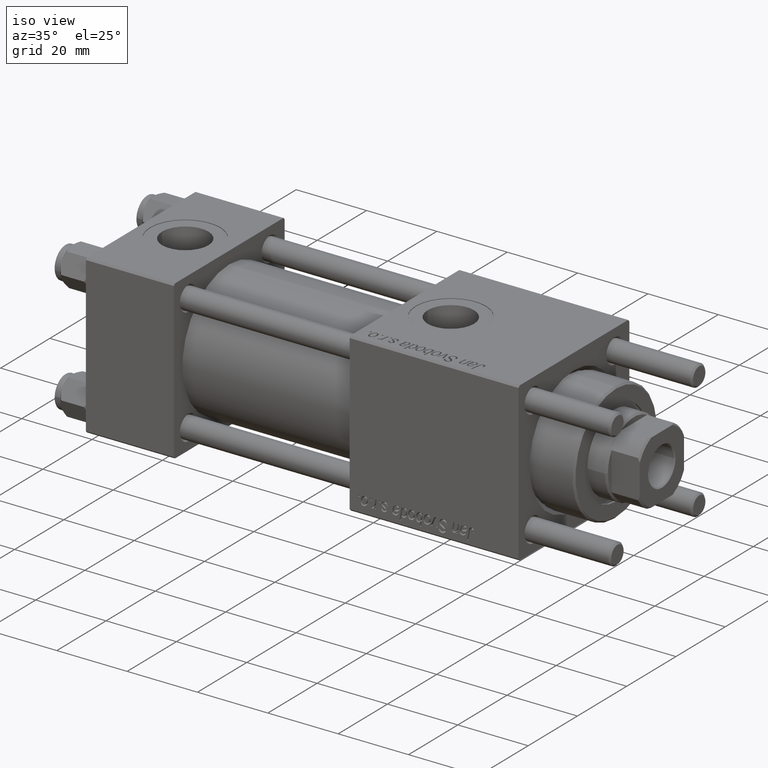
[diagram: clean part render]
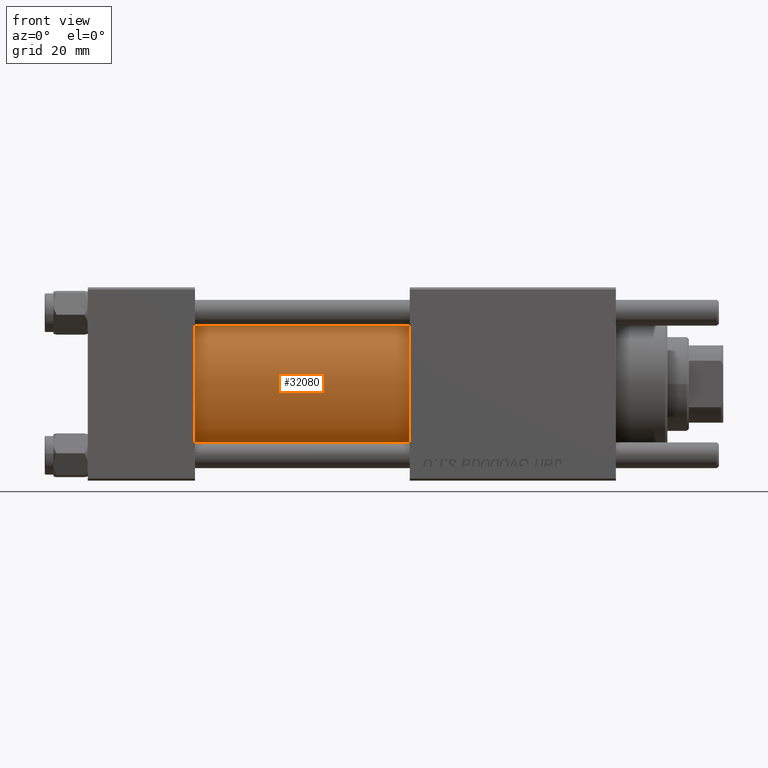
[diagram: tour spotlight — one face highlighted and labeled with its STEP entity id]
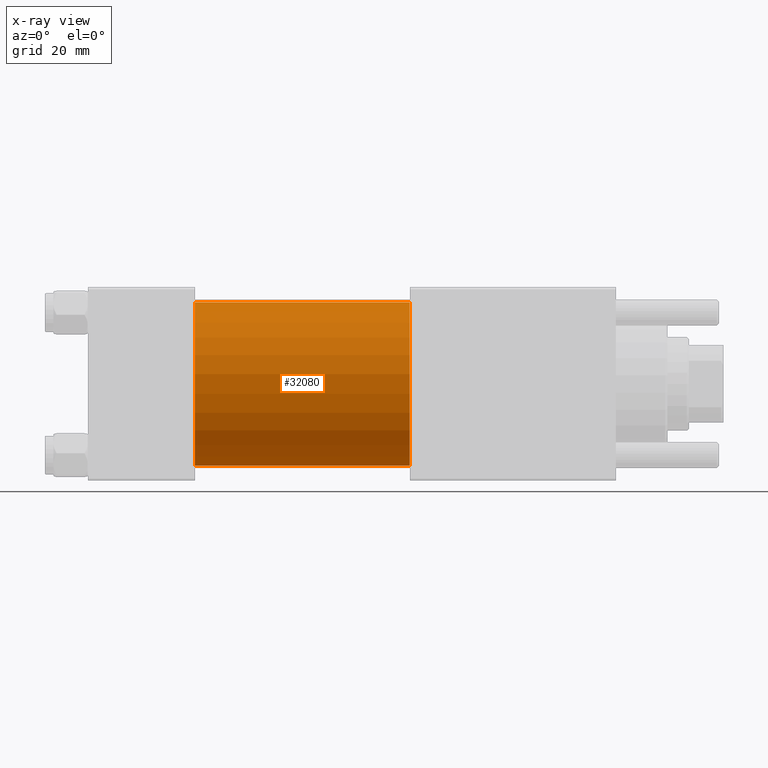
[diagram: x-ray of the same camera — body ghosted, this tour face saturated]
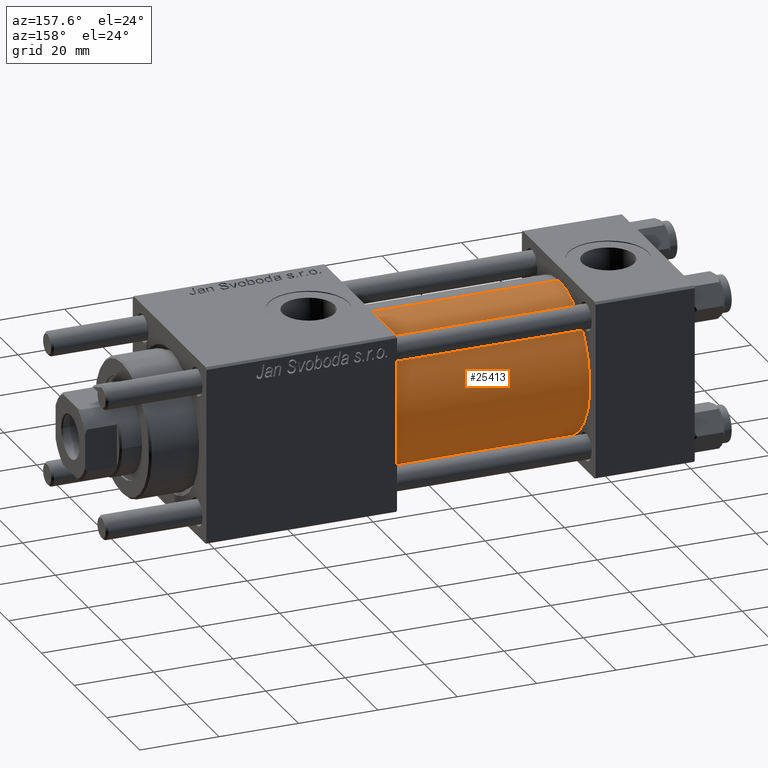
[diagram: tour spotlight — one face highlighted and labeled with its STEP entity id]
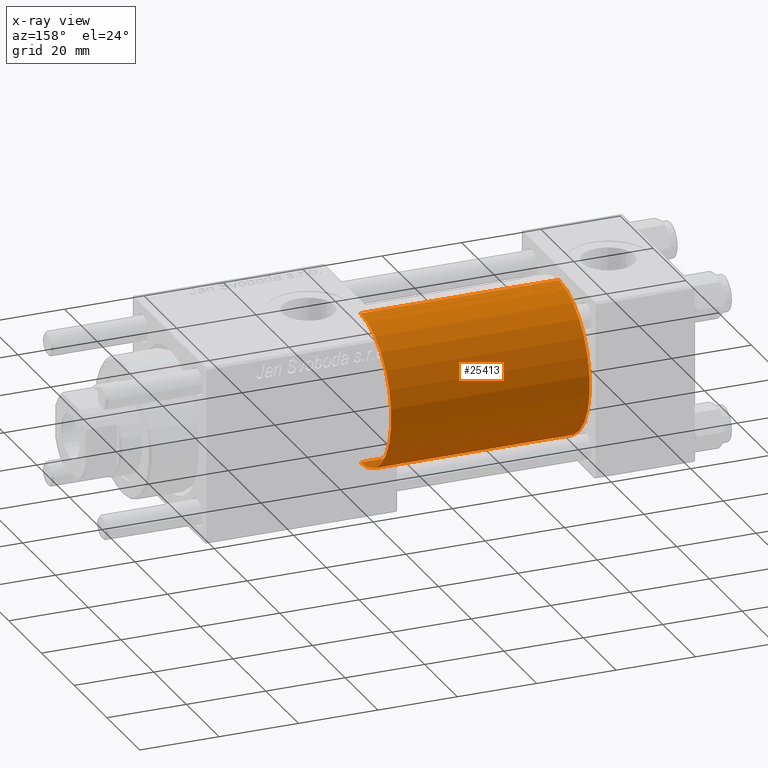
[diagram: x-ray of the same camera — body ghosted, this tour face saturated]
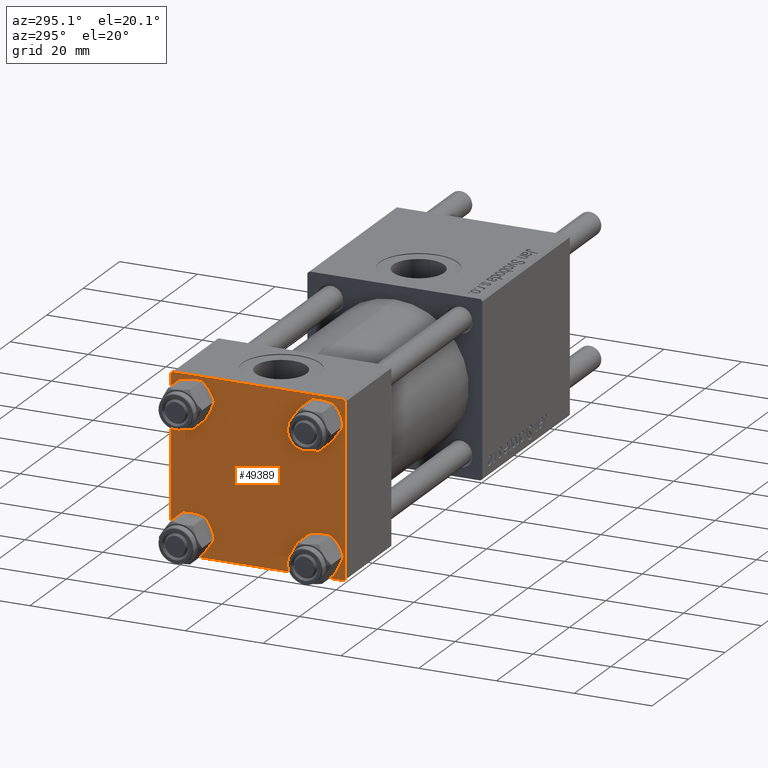
[diagram: tour spotlight — one face highlighted and labeled with its STEP entity id]
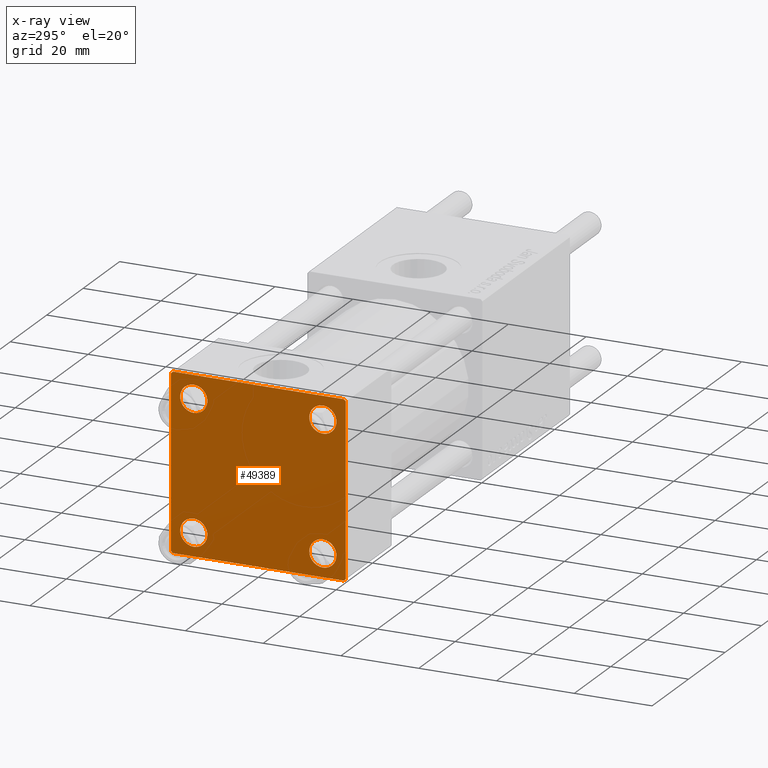
[diagram: x-ray of the same camera — body ghosted, this tour face saturated]
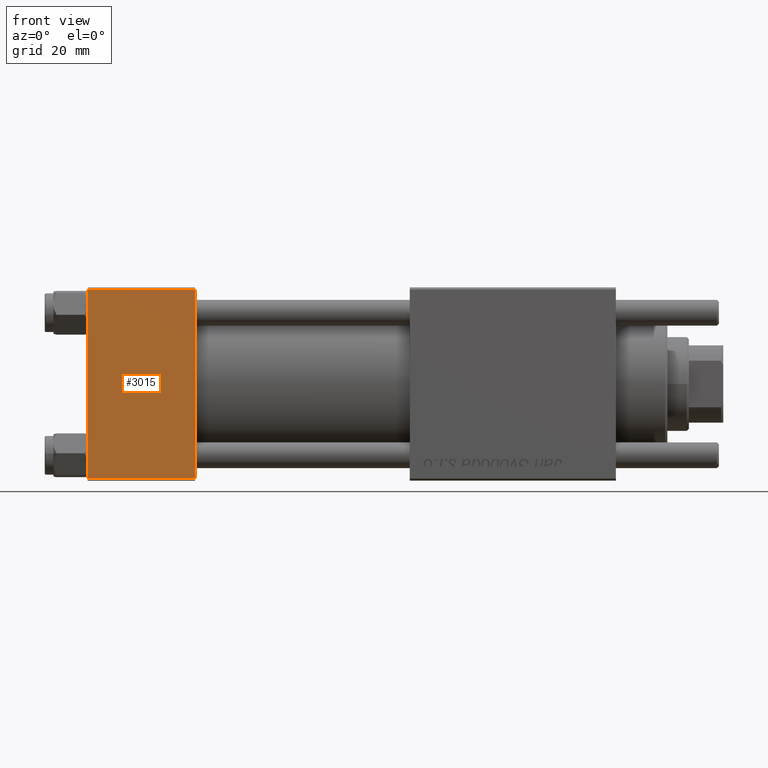
[diagram: tour spotlight — one face highlighted and labeled with its STEP entity id]
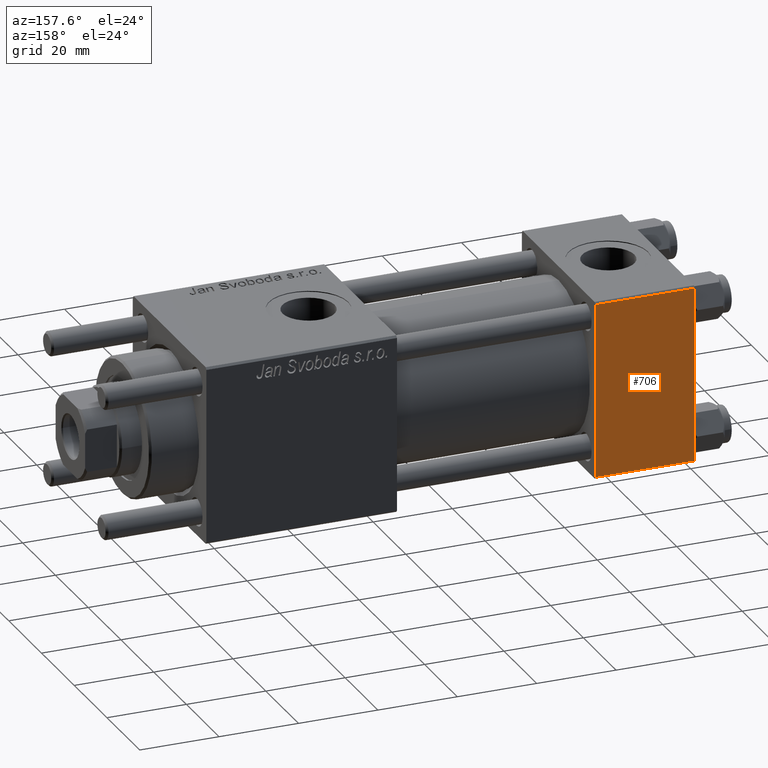
[diagram: tour spotlight — one face highlighted and labeled with its STEP entity id]
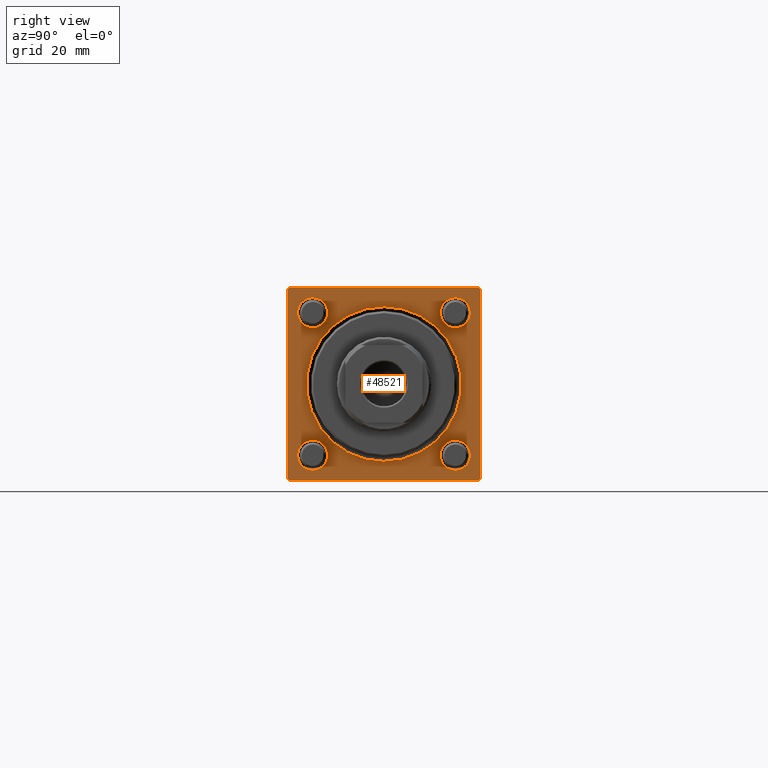
[diagram: tour spotlight — one face highlighted and labeled with its STEP entity id]
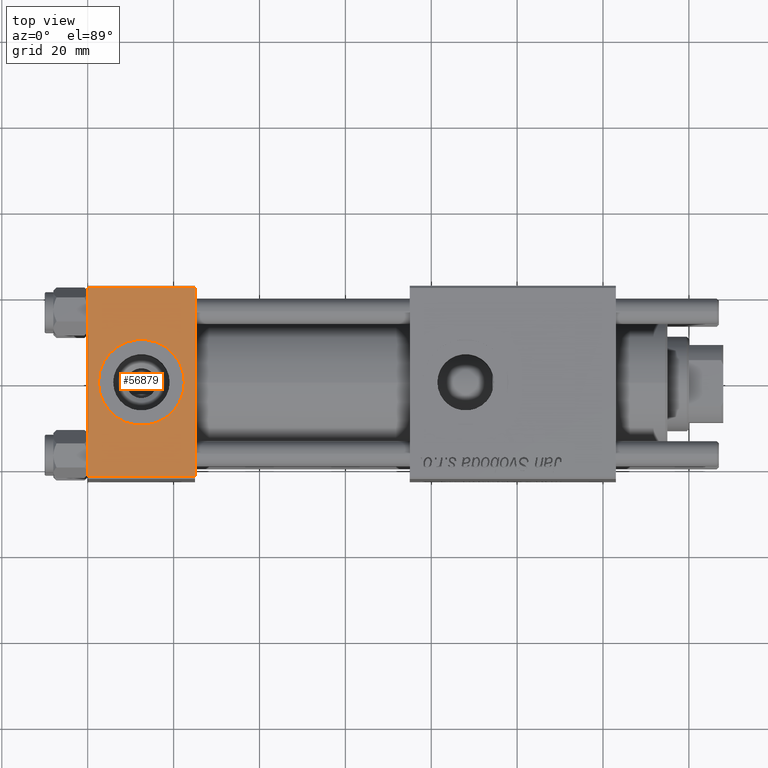
[diagram: tour spotlight — one face highlighted and labeled with its STEP entity id]
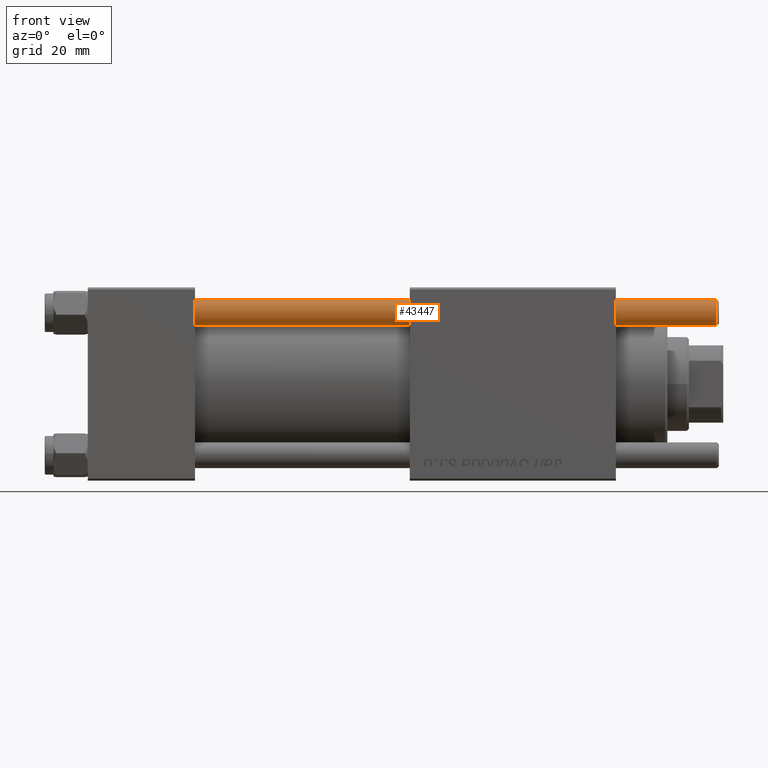
[diagram: tour spotlight — one face highlighted and labeled with its STEP entity id]
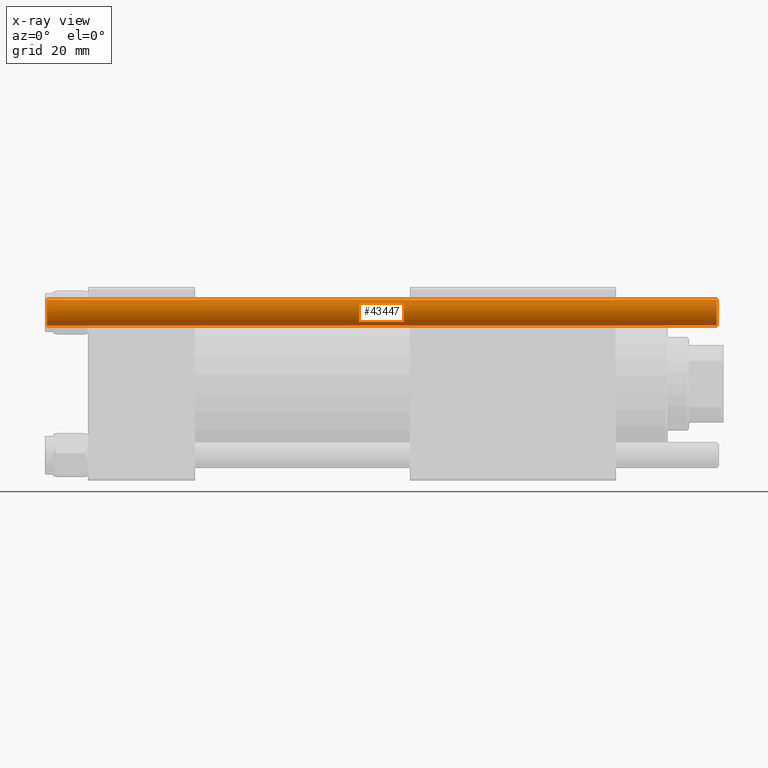
[diagram: x-ray of the same camera — body ghosted, this tour face saturated]
A machine part: a face-by-face anatomy tour. The part has 1157 B-rep faces; the first image is the clean iso view, then the 8 largest visible faces are spotlighted one at a time (largest first), each with its STEP entity span.

Face 1 — front view, entity #32080. An x-ray twin of the same camera follows (body ghosted, this face saturated) — the face is partly hidden behind the body. In plain terms, the highlighted cylindrical surface (partial cylindrical patch) has radius 19 mm, axis along (-1, -0, -0).
Definition (entity closure, byte-faithful):
#2271 = FACE_OUTER_BOUND ( 'NONE', #30491, .T. ) ;
#2499 = CARTESIAN_POINT ( 'NONE',  ( 25.00000000000000000, -2.602085213965210642E-15, 19.00000000000000000 ) ) ;
#2553 = DIRECTION ( 'NONE',  ( -1.000000000000000000, -0.000000000000000000, -0.000000000000000000 ) ) ;
#3081 = CARTESIAN_POINT ( 'NONE',  ( 75.00000000000001421, -2.602085213965210642E-15, 0.000000000000000000 ) ) ;
#3854 = LINE ( 'NONE', #16788, #27513 ) ;
#4179 = CARTESIAN_POINT ( 'NONE',  ( 75.00000000000001421, -2.602085213965210642E-15, 19.00000000000000000 ) ) ;
#7443 = DIRECTION ( 'NONE',  ( 0.000000000000000000, 0.000000000000000000, 1.000000000000000000 ) ) ;
#7963 = DIRECTION ( 'NONE',  ( 1.000000000000000000, 0.000000000000000000, 0.000000000000000000 ) ) ;
#8123 = DIRECTION ( 'NONE',  ( 0.000000000000000000, 0.000000000000000000, 1.000000000000000000 ) ) ;
#10801 = EDGE_CURVE ( 'NONE', #40292, #19849, #3854, .T. ) ;
#11268 = EDGE_CURVE ( 'NONE', #31561, #49364, #26672, .T. ) ;
#11986 = DIRECTION ( 'NONE',  ( 0.000000000000000000, 0.000000000000000000, -1.000000000000000000 ) ) ;
#12220 = EDGE_CURVE ( 'NONE', #49364, #19849, #39524, .T. ) ;
#13303 = DIRECTION ( 'NONE',  ( -1.000000000000000000, -0.000000000000000000, -0.000000000000000000 ) ) ;
#15361 = CIRCLE ( 'NONE', #42927, 19.00000000000000000 ) ;
#16773 = CARTESIAN_POINT ( 'NONE',  ( 75.00000000000001421, -2.752562955852396712E-16, -19.00000000000000000 ) ) ;
#16788 = CARTESIAN_POINT ( 'NONE',  ( 75.00000000000001421, -2.752562955852396712E-16, -19.00000000000000000 ) ) ;
#18141 = ORIENTED_EDGE ( 'NONE', *, *, #12220, .T. ) ;
#19849 = VERTEX_POINT ( 'NONE', #47677 ) ;
#21794 = ORIENTED_EDGE ( 'NONE', *, *, #34715, .F. ) ;
#26093 = DIRECTION ( 'NONE',  ( -1.000000000000000000, -0.000000000000000000, -0.000000000000000000 ) ) ;
#26514 = VECTOR ( 'NONE', #26093, 1000.000000000000000 ) ;
#26672 = LINE ( 'NONE', #44242, #26514 ) ;
#27513 = VECTOR ( 'NONE', #13303, 1000.000000000000000 ) ;
#30491 = EDGE_LOOP ( 'NONE', ( #41439, #21794, #33523, #18141 ) ) ;
#30822 = DIRECTION ( 'NONE',  ( 1.000000000000000000, -0.000000000000000000, 0.000000000000000000 ) ) ;
#31561 = VERTEX_POINT ( 'NONE', #4179 ) ;
#32080 = ADVANCED_FACE ( 'NONE', ( #2271 ), #45996, .T. ) ;
#33338 = CARTESIAN_POINT ( 'NONE',  ( 75.00000000000001421, -2.602085213965210642E-15, 0.000000000000000000 ) ) ;
#33523 = ORIENTED_EDGE ( 'NONE', *, *, #11268, .T. ) ;
#34715 = EDGE_CURVE ( 'NONE', #31561, #40292, #15361, .T. ) ;
#39524 = CIRCLE ( 'NONE', #46874, 19.00000000000000000 ) ;
#40292 = VERTEX_POINT ( 'NONE', #16773 ) ;
#41439 = ORIENTED_EDGE ( 'NONE', *, *, #10801, .F. ) ;
#42927 = AXIS2_PLACEMENT_3D ( 'NONE', #3081, #7963, #11986 ) ;
#43740 = AXIS2_PLACEMENT_3D ( 'NONE', #33338, #2553, #7443 ) ;
#44242 = CARTESIAN_POINT ( 'NONE',  ( 75.00000000000001421, -2.602085213965210642E-15, 19.00000000000000000 ) ) ;
#45996 = CYLINDRICAL_SURFACE ( 'NONE', #43740, 19.00000000000000000 ) ;
#46874 = AXIS2_PLACEMENT_3D ( 'NONE', #47530, #30822, #8123 ) ;
#47530 = CARTESIAN_POINT ( 'NONE',  ( 25.00000000000000000, -2.602085213965210642E-15, 0.000000000000000000 ) ) ;
#47677 = CARTESIAN_POINT ( 'NONE',  ( 25.00000000000000000, -2.752562955852396712E-16, -19.00000000000000000 ) ) ;
#49364 = VERTEX_POINT ( 'NONE', #2499 ) ;

Face 2 — auxiliary view, entity #25413. An x-ray twin of the same camera follows (body ghosted, this face saturated) — the face is partly hidden behind the body. In plain terms, the highlighted cylindrical surface (partial cylindrical patch) has radius 19 mm, axis along (-1, -0, -0).
Definition (entity closure, byte-faithful):
#921 = DIRECTION ( 'NONE',  ( 0.000000000000000000, 0.000000000000000000, 1.000000000000000000 ) ) ;
#1202 = CARTESIAN_POINT ( 'NONE',  ( 75.00000000000001421, -2.602085213965210642E-15, 0.000000000000000000 ) ) ;
#1443 = ORIENTED_EDGE ( 'NONE', *, *, #47967, .F. ) ;
#2499 = CARTESIAN_POINT ( 'NONE',  ( 25.00000000000000000, -2.602085213965210642E-15, 19.00000000000000000 ) ) ;
#3259 = DIRECTION ( 'NONE',  ( 1.000000000000000000, 0.000000000000000000, 0.000000000000000000 ) ) ;
#3854 = LINE ( 'NONE', #16788, #27513 ) ;
#4179 = CARTESIAN_POINT ( 'NONE',  ( 75.00000000000001421, -2.602085213965210642E-15, 19.00000000000000000 ) ) ;
#4662 = DIRECTION ( 'NONE',  ( -1.000000000000000000, -0.000000000000000000, -0.000000000000000000 ) ) ;
#7286 = CARTESIAN_POINT ( 'NONE',  ( 75.00000000000001421, -2.602085213965210642E-15, 0.000000000000000000 ) ) ;
#8487 = DIRECTION ( 'NONE',  ( 1.000000000000000000, -0.000000000000000000, 0.000000000000000000 ) ) ;
#9143 = CIRCLE ( 'NONE', #32093, 19.00000000000000000 ) ;
#9165 = EDGE_LOOP ( 'NONE', ( #1443, #33378, #34163, #54941 ) ) ;
#9220 = AXIS2_PLACEMENT_3D ( 'NONE', #7286, #3259, #24814 ) ;
#10801 = EDGE_CURVE ( 'NONE', #40292, #19849, #3854, .T. ) ;
#11268 = EDGE_CURVE ( 'NONE', #31561, #49364, #26672, .T. ) ;
#12837 = EDGE_CURVE ( 'NONE', #19849, #49364, #9143, .T. ) ;
#13303 = DIRECTION ( 'NONE',  ( -1.000000000000000000, -0.000000000000000000, -0.000000000000000000 ) ) ;
#16773 = CARTESIAN_POINT ( 'NONE',  ( 75.00000000000001421, -2.752562955852396712E-16, -19.00000000000000000 ) ) ;
#16788 = CARTESIAN_POINT ( 'NONE',  ( 75.00000000000001421, -2.752562955852396712E-16, -19.00000000000000000 ) ) ;
#19849 = VERTEX_POINT ( 'NONE', #47677 ) ;
#23439 = AXIS2_PLACEMENT_3D ( 'NONE', #1202, #4662, #921 ) ;
#24814 = DIRECTION ( 'NONE',  ( 0.000000000000000000, 0.000000000000000000, -1.000000000000000000 ) ) ;
#25413 = ADVANCED_FACE ( 'NONE', ( #44357 ), #40612, .T. ) ;
#25997 = DIRECTION ( 'NONE',  ( 0.000000000000000000, 0.000000000000000000, 1.000000000000000000 ) ) ;
#26093 = DIRECTION ( 'NONE',  ( -1.000000000000000000, -0.000000000000000000, -0.000000000000000000 ) ) ;
#26514 = VECTOR ( 'NONE', #26093, 1000.000000000000000 ) ;
#26672 = LINE ( 'NONE', #44242, #26514 ) ;
#27513 = VECTOR ( 'NONE', #13303, 1000.000000000000000 ) ;
#31561 = VERTEX_POINT ( 'NONE', #4179 ) ;
#32093 = AXIS2_PLACEMENT_3D ( 'NONE', #47884, #8487, #25997 ) ;
#33378 = ORIENTED_EDGE ( 'NONE', *, *, #10801, .T. ) ;
#34163 = ORIENTED_EDGE ( 'NONE', *, *, #12837, .T. ) ;
#38607 = CIRCLE ( 'NONE', #9220, 19.00000000000000000 ) ;
#40292 = VERTEX_POINT ( 'NONE', #16773 ) ;
#40612 = CYLINDRICAL_SURFACE ( 'NONE', #23439, 19.00000000000000000 ) ;
#44242 = CARTESIAN_POINT ( 'NONE',  ( 75.00000000000001421, -2.602085213965210642E-15, 19.00000000000000000 ) ) ;
#44357 = FACE_OUTER_BOUND ( 'NONE', #9165, .T. ) ;
#47677 = CARTESIAN_POINT ( 'NONE',  ( 25.00000000000000000, -2.752562955852396712E-16, -19.00000000000000000 ) ) ;
#47884 = CARTESIAN_POINT ( 'NONE',  ( 25.00000000000000000, -2.602085213965210642E-15, 0.000000000000000000 ) ) ;
#47967 = EDGE_CURVE ( 'NONE', #40292, #31561, #38607, .T. ) ;
#49364 = VERTEX_POINT ( 'NONE', #2499 ) ;
#54941 = ORIENTED_EDGE ( 'NONE', *, *, #11268, .F. ) ;

Face 3 — auxiliary view, entity #49389. An x-ray twin of the same camera follows (body ghosted, this face saturated) — the face is partly hidden behind the body. In plain terms, the highlighted planar face has unit normal (-1, 0, 0).
Definition (entity closure, byte-faithful):
#556 = VERTEX_POINT ( 'NONE', #20072 ) ;
#922 = VERTEX_POINT ( 'NONE', #27369 ) ;
#1224 = DIRECTION ( 'NONE',  ( -0.000000000000000000, 0.7071067811865525687, 0.7071067811865425767 ) ) ;
#2170 = ORIENTED_EDGE ( 'NONE', *, *, #32137, .F. ) ;
#2721 = AXIS2_PLACEMENT_3D ( 'NONE', #33783, #15930, #10490 ) ;
#2847 = LINE ( 'NONE', #20368, #33648 ) ;
#3378 = LINE ( 'NONE', #7408, #36559 ) ;
#3979 = DIRECTION ( 'NONE',  ( 0.000000000000000000, -1.000000000000000000, -7.709882115452476934E-17 ) ) ;
#4116 = CARTESIAN_POINT ( 'NONE',  ( 0.000000000000000000, 21.99999999999999289, 22.50000000000000355 ) ) ;
#4354 = ORIENTED_EDGE ( 'NONE', *, *, #40769, .T. ) ;
#4859 = LINE ( 'NONE', #31029, #52329 ) ;
#5062 = AXIS2_PLACEMENT_3D ( 'NONE', #31406, #5207, #18432 ) ;
#5207 = DIRECTION ( 'NONE',  ( 1.000000000000000000, -0.000000000000000000, 0.000000000000000000 ) ) ;
#6540 = FACE_BOUND ( 'NONE', #22113, .T. ) ;
#6614 = CIRCLE ( 'NONE', #38778, 3.499999999999996003 ) ;
#6814 = DIRECTION ( 'NONE',  ( 1.000000000000000000, -0.000000000000000000, 0.000000000000000000 ) ) ;
#7030 = VECTOR ( 'NONE', #33835, 1000.000000000000000 ) ;
#7165 = EDGE_CURVE ( 'NONE', #48338, #12547, #50764, .T. ) ;
#7210 = DIRECTION ( 'NONE',  ( 1.000000000000000000, -0.000000000000000000, 0.000000000000000000 ) ) ;
#7408 = CARTESIAN_POINT ( 'NONE',  ( 0.000000000000000000, 22.50000000000000000, -22.49999999999999645 ) ) ;
#7657 = CARTESIAN_POINT ( 'NONE',  ( -0.000000000000000000, -22.24999999999984013, 22.25000000000015277 ) ) ;
#7685 = VERTEX_POINT ( 'NONE', #34902 ) ;
#9114 = ORIENTED_EDGE ( 'NONE', *, *, #54101, .T. ) ;
#9192 = CARTESIAN_POINT ( 'NONE',  ( 0.000000000000000000, 16.59999999999999787, 16.60000000000000497 ) ) ;
#9999 = VECTOR ( 'NONE', #15702, 1000.000000000000000 ) ;
#10296 = DIRECTION ( 'NONE',  ( 1.000000000000000000, -0.000000000000000000, 0.000000000000000000 ) ) ;
#10490 = DIRECTION ( 'NONE',  ( 0.000000000000000000, 0.000000000000000000, 1.000000000000000000 ) ) ;
#10640 = AXIS2_PLACEMENT_3D ( 'NONE', #29057, #7210, #24732 ) ;
#11118 = CARTESIAN_POINT ( 'NONE',  ( 0.000000000000000000, -16.59999999999999076, -16.60000000000000853 ) ) ;
#11516 = EDGE_LOOP ( 'NONE', ( #34332, #40053, #37597, #26243, #12141, #42706, #2170, #33177 ) ) ;
#11575 = ORIENTED_EDGE ( 'NONE', *, *, #30875, .T. ) ;
#11659 = CARTESIAN_POINT ( 'NONE',  ( 0.000000000000000000, 22.25000000000014566, -22.24999999999984013 ) ) ;
#11813 = ORIENTED_EDGE ( 'NONE', *, *, #52168, .T. ) ;
#12141 = ORIENTED_EDGE ( 'NONE', *, *, #32116, .F. ) ;
#12547 = VERTEX_POINT ( 'NONE', #18575 ) ;
#12804 = VECTOR ( 'NONE', #1224, 999.9999999999998863 ) ;
#14888 = CARTESIAN_POINT ( 'NONE',  ( 0.000000000000000000, 16.59999999999999787, 16.60000000000000497 ) ) ;
#15145 = EDGE_CURVE ( 'NONE', #7685, #47601, #44980, .T. ) ;
#15433 = DIRECTION ( 'NONE',  ( 1.000000000000000000, -0.000000000000000000, 0.000000000000000000 ) ) ;
#15435 = FACE_OUTER_BOUND ( 'NONE', #11516, .T. ) ;
#15702 = DIRECTION ( 'NONE',  ( -0.000000000000000000, -0.7071067811865426878, -0.7071067811865524577 ) ) ;
#15721 = PLANE ( 'NONE',  #17524 ) ;
#15930 = DIRECTION ( 'NONE',  ( 1.000000000000000000, -0.000000000000000000, 0.000000000000000000 ) ) ;
#16180 = EDGE_CURVE ( 'NONE', #21405, #33196, #4859, .T. ) ;
#16363 = DIRECTION ( 'NONE',  ( 0.000000000000000000, 0.000000000000000000, 1.000000000000000000 ) ) ;
#17524 = AXIS2_PLACEMENT_3D ( 'NONE', #20021, #28665, #49949 ) ;
#17610 = AXIS2_PLACEMENT_3D ( 'NONE', #23763, #15433, #49674 ) ;
#18432 = DIRECTION ( 'NONE',  ( 0.000000000000000000, 0.000000000000000000, 1.000000000000000000 ) ) ;
#18489 = CARTESIAN_POINT ( 'NONE',  ( 0.000000000000000000, -16.59999999999999076, -20.10000000000000497 ) ) ;
#18575 = CARTESIAN_POINT ( 'NONE',  ( 0.000000000000000000, 21.99999999999999289, -22.49999999999999645 ) ) ;
#19466 = FACE_BOUND ( 'NONE', #39984, .T. ) ;
#19553 = EDGE_LOOP ( 'NONE', ( #20055, #11813 ) ) ;
#20021 = CARTESIAN_POINT ( 'NONE',  ( 0.000000000000000000, 0.000000000000000000, 0.000000000000000000 ) ) ;
#20055 = ORIENTED_EDGE ( 'NONE', *, *, #27950, .T. ) ;
#20072 = CARTESIAN_POINT ( 'NONE',  ( 0.000000000000000000, -21.99999999999997158, -22.50000000000000711 ) ) ;
#20368 = CARTESIAN_POINT ( 'NONE',  ( 0.000000000000000000, -22.50000000000000000, 22.50000000000000000 ) ) ;
#20656 = VERTEX_POINT ( 'NONE', #55715 ) ;
#20955 = DIRECTION ( 'NONE',  ( 1.000000000000000000, -0.000000000000000000, 0.000000000000000000 ) ) ;
#21245 = CARTESIAN_POINT ( 'NONE',  ( 0.000000000000000000, 16.59999999999999787, -16.60000000000000497 ) ) ;
#21405 = VERTEX_POINT ( 'NONE', #4116 ) ;
#22113 = EDGE_LOOP ( 'NONE', ( #9114, #37425 ) ) ;
#22578 = CIRCLE ( 'NONE', #10640, 3.499999999999996003 ) ;
#23096 = CARTESIAN_POINT ( 'NONE',  ( 0.000000000000000000, 16.59999999999999787, 20.10000000000000142 ) ) ;
#23508 = VECTOR ( 'NONE', #3979, 1000.000000000000000 ) ;
#23532 = EDGE_LOOP ( 'NONE', ( #45006, #27731 ) ) ;
#23763 = CARTESIAN_POINT ( 'NONE',  ( 0.000000000000000000, -16.59999999999999076, 16.60000000000000853 ) ) ;
#24732 = DIRECTION ( 'NONE',  ( 0.000000000000000000, 0.000000000000000000, 1.000000000000000000 ) ) ;
#24854 = VERTEX_POINT ( 'NONE', #29901 ) ;
#24860 = CARTESIAN_POINT ( 'NONE',  ( 0.000000000000000000, -22.50000000000000000, 22.00000000000000000 ) ) ;
#24891 = EDGE_CURVE ( 'NONE', #32471, #32347, #47247, .T. ) ;
#25173 = AXIS2_PLACEMENT_3D ( 'NONE', #9192, #35937, #39959 ) ;
#26243 = ORIENTED_EDGE ( 'NONE', *, *, #31597, .T. ) ;
#26291 = CARTESIAN_POINT ( 'NONE',  ( 0.000000000000000000, -22.25000000000014566, -22.24999999999984013 ) ) ;
#27369 = CARTESIAN_POINT ( 'NONE',  ( 0.000000000000000000, -22.50000000000000000, -21.99999999999997158 ) ) ;
#27634 = VERTEX_POINT ( 'NONE', #24860 ) ;
#27731 = ORIENTED_EDGE ( 'NONE', *, *, #41010, .T. ) ;
#27950 = EDGE_CURVE ( 'NONE', #41519, #56436, #53679, .T. ) ;
#28665 = DIRECTION ( 'NONE',  ( -1.000000000000000000, 0.000000000000000000, -0.000000000000000000 ) ) ;
#29057 = CARTESIAN_POINT ( 'NONE',  ( 0.000000000000000000, -16.59999999999999076, -16.60000000000000853 ) ) ;
#29513 = LINE ( 'NONE', #7657, #12804 ) ;
#29564 = CIRCLE ( 'NONE', #17610, 3.499999999999996003 ) ;
#29806 = CARTESIAN_POINT ( 'NONE',  ( 0.000000000000000000, -16.59999999999999076, 20.10000000000000853 ) ) ;
#29901 = CARTESIAN_POINT ( 'NONE',  ( 0.000000000000000000, -16.59999999999999076, -13.10000000000001030 ) ) ;
#30875 = EDGE_CURVE ( 'NONE', #54872, #24854, #22578, .T. ) ;
#31029 = CARTESIAN_POINT ( 'NONE',  ( 0.000000000000000000, 22.24999999999999645, 22.24999999999999645 ) ) ;
#31406 = CARTESIAN_POINT ( 'NONE',  ( 0.000000000000000000, -16.59999999999999076, 16.60000000000000853 ) ) ;
#31597 = EDGE_CURVE ( 'NONE', #556, #922, #48178, .T. ) ;
#32116 = EDGE_CURVE ( 'NONE', #27634, #922, #2847, .T. ) ;
#32137 = EDGE_CURVE ( 'NONE', #21405, #20656, #43662, .T. ) ;
#32347 = VERTEX_POINT ( 'NONE', #23096 ) ;
#32436 = FACE_BOUND ( 'NONE', #19553, .T. ) ;
#32471 = VERTEX_POINT ( 'NONE', #50841 ) ;
#33177 = ORIENTED_EDGE ( 'NONE', *, *, #16180, .T. ) ;
#33196 = VERTEX_POINT ( 'NONE', #53541 ) ;
#33648 = VECTOR ( 'NONE', #37934, 1000.000000000000000 ) ;
#33783 = CARTESIAN_POINT ( 'NONE',  ( 0.000000000000000000, 16.59999999999999787, -16.60000000000000497 ) ) ;
#33835 = DIRECTION ( 'NONE',  ( 0.000000000000000000, -0.7071067811865426878, 0.7071067811865524577 ) ) ;
#33901 = CIRCLE ( 'NONE', #54893, 3.499999999999996003 ) ;
#34119 = CARTESIAN_POINT ( 'NONE',  ( 0.000000000000000000, 16.59999999999999787, -20.10000000000000142 ) ) ;
#34332 = ORIENTED_EDGE ( 'NONE', *, *, #40505, .T. ) ;
#34826 = CARTESIAN_POINT ( 'NONE',  ( 0.000000000000000000, 22.50000000000000000, -21.99999999999996803 ) ) ;
#34902 = CARTESIAN_POINT ( 'NONE',  ( 0.000000000000000000, 16.59999999999999787, -13.10000000000000675 ) ) ;
#35047 = CARTESIAN_POINT ( 'NONE',  ( 0.000000000000000000, 22.50000000000000000, 22.50000000000000355 ) ) ;
#35505 = EDGE_CURVE ( 'NONE', #12547, #556, #3378, .T. ) ;
#35937 = DIRECTION ( 'NONE',  ( 1.000000000000000000, -0.000000000000000000, 0.000000000000000000 ) ) ;
#36182 = DIRECTION ( 'NONE',  ( 0.000000000000000000, 0.000000000000000000, -1.000000000000000000 ) ) ;
#36559 = VECTOR ( 'NONE', #48153, 1000.000000000000000 ) ;
#37425 = ORIENTED_EDGE ( 'NONE', *, *, #24891, .T. ) ;
#37597 = ORIENTED_EDGE ( 'NONE', *, *, #35505, .T. ) ;
#37934 = DIRECTION ( 'NONE',  ( 0.000000000000000000, 0.000000000000000000, -1.000000000000000000 ) ) ;
#38778 = AXIS2_PLACEMENT_3D ( 'NONE', #14888, #10296, #45952 ) ;
#39645 = LINE ( 'NONE', #53675, #43094 ) ;
#39959 = DIRECTION ( 'NONE',  ( 0.000000000000000000, 0.000000000000000000, 1.000000000000000000 ) ) ;
#39984 = EDGE_LOOP ( 'NONE', ( #4354, #11575 ) ) ;
#40053 = ORIENTED_EDGE ( 'NONE', *, *, #7165, .T. ) ;
#40505 = EDGE_CURVE ( 'NONE', #33196, #48338, #39645, .T. ) ;
#40524 = DIRECTION ( 'NONE',  ( 0.000000000000000000, 0.7071067811865474617, -0.7071067811865474617 ) ) ;
#40769 = EDGE_CURVE ( 'NONE', #24854, #54872, #33901, .T. ) ;
#41010 = EDGE_CURVE ( 'NONE', #47601, #7685, #42214, .T. ) ;
#41519 = VERTEX_POINT ( 'NONE', #29806 ) ;
#42214 = CIRCLE ( 'NONE', #2721, 3.499999999999996003 ) ;
#42706 = ORIENTED_EDGE ( 'NONE', *, *, #45420, .T. ) ;
#43094 = VECTOR ( 'NONE', #36182, 1000.000000000000000 ) ;
#43662 = LINE ( 'NONE', #35047, #23508 ) ;
#44980 = CIRCLE ( 'NONE', #52283, 3.499999999999996003 ) ;
#45006 = ORIENTED_EDGE ( 'NONE', *, *, #15145, .T. ) ;
#45420 = EDGE_CURVE ( 'NONE', #27634, #20656, #29513, .T. ) ;
#45952 = DIRECTION ( 'NONE',  ( 0.000000000000000000, 0.000000000000000000, 1.000000000000000000 ) ) ;
#46503 = FACE_BOUND ( 'NONE', #23532, .T. ) ;
#47247 = CIRCLE ( 'NONE', #25173, 3.499999999999996003 ) ;
#47601 = VERTEX_POINT ( 'NONE', #34119 ) ;
#48153 = DIRECTION ( 'NONE',  ( 0.000000000000000000, -1.000000000000000000, -2.312964634635742957E-16 ) ) ;
#48178 = LINE ( 'NONE', #26291, #7030 ) ;
#48338 = VERTEX_POINT ( 'NONE', #34826 ) ;
#49389 = ADVANCED_FACE ( 'NONE', ( #32436, #19466, #46503, #6540, #15435 ), #15721, .T. ) ;
#49674 = DIRECTION ( 'NONE',  ( 0.000000000000000000, 0.000000000000000000, 1.000000000000000000 ) ) ;
#49905 = CARTESIAN_POINT ( 'NONE',  ( 0.000000000000000000, -16.59999999999999076, 13.10000000000001030 ) ) ;
#49949 = DIRECTION ( 'NONE',  ( -0.000000000000000000, 0.000000000000000000, 1.000000000000000000 ) ) ;
#50764 = LINE ( 'NONE', #11659, #9999 ) ;
#50841 = CARTESIAN_POINT ( 'NONE',  ( 0.000000000000000000, 16.59999999999999787, 13.10000000000000675 ) ) ;
#52168 = EDGE_CURVE ( 'NONE', #56436, #41519, #29564, .T. ) ;
#52283 = AXIS2_PLACEMENT_3D ( 'NONE', #21245, #20955, #16363 ) ;
#52329 = VECTOR ( 'NONE', #40524, 1000.000000000000114 ) ;
#53541 = CARTESIAN_POINT ( 'NONE',  ( 0.000000000000000000, 22.50000000000000000, 21.99999999999999645 ) ) ;
#53675 = CARTESIAN_POINT ( 'NONE',  ( 0.000000000000000000, 22.50000000000000000, 22.50000000000000355 ) ) ;
#53679 = CIRCLE ( 'NONE', #5062, 3.499999999999996003 ) ;
#54101 = EDGE_CURVE ( 'NONE', #32347, #32471, #6614, .T. ) ;
#54809 = DIRECTION ( 'NONE',  ( 0.000000000000000000, 0.000000000000000000, 1.000000000000000000 ) ) ;
#54872 = VERTEX_POINT ( 'NONE', #18489 ) ;
#54893 = AXIS2_PLACEMENT_3D ( 'NONE', #11118, #6814, #54809 ) ;
#55715 = CARTESIAN_POINT ( 'NONE',  ( 0.000000000000000000, -21.99999999999997868, 22.50000000000000000 ) ) ;
#56436 = VERTEX_POINT ( 'NONE', #49905 ) ;

Face 4 — front view, entity #3015. In plain terms, the highlighted planar face has unit normal (0, 1, 0).
Definition (entity closure, byte-faithful):
#922 = VERTEX_POINT ( 'NONE', #27369 ) ;
#1914 = DIRECTION ( 'NONE',  ( -1.000000000000000000, 0.000000000000000000, 0.000000000000000000 ) ) ;
#2477 = CARTESIAN_POINT ( 'NONE',  ( 25.00000000000000000, -22.50000000000000000, 22.00000000000000000 ) ) ;
#2706 = ORIENTED_EDGE ( 'NONE', *, *, #47888, .T. ) ;
#2847 = LINE ( 'NONE', #20368, #33648 ) ;
#3015 = ADVANCED_FACE ( 'NONE', ( #49540 ), #40648, .F. ) ;
#3054 = LINE ( 'NONE', #2477, #46496 ) ;
#4686 = ORIENTED_EDGE ( 'NONE', *, *, #25099, .F. ) ;
#12324 = VECTOR ( 'NONE', #48732, 1000.000000000000000 ) ;
#13569 = CARTESIAN_POINT ( 'NONE',  ( 25.00000000000000000, -22.50000000000000000, 22.00000000000000000 ) ) ;
#14687 = ORIENTED_EDGE ( 'NONE', *, *, #32116, .T. ) ;
#18388 = VECTOR ( 'NONE', #38067, 1000.000000000000000 ) ;
#18753 = DIRECTION ( 'NONE',  ( -0.000000000000000000, 1.000000000000000000, 0.000000000000000000 ) ) ;
#20368 = CARTESIAN_POINT ( 'NONE',  ( 0.000000000000000000, -22.50000000000000000, 22.50000000000000000 ) ) ;
#24523 = CARTESIAN_POINT ( 'NONE',  ( 25.00000000000000000, -22.50000000000000000, -21.99999999999998579 ) ) ;
#24860 = CARTESIAN_POINT ( 'NONE',  ( 0.000000000000000000, -22.50000000000000000, 22.00000000000000000 ) ) ;
#25099 = EDGE_CURVE ( 'NONE', #43565, #56009, #40111, .T. ) ;
#27369 = CARTESIAN_POINT ( 'NONE',  ( 0.000000000000000000, -22.50000000000000000, -21.99999999999997158 ) ) ;
#27634 = VERTEX_POINT ( 'NONE', #24860 ) ;
#27675 = DIRECTION ( 'NONE',  ( 0.000000000000000000, -0.000000000000000000, 1.000000000000000000 ) ) ;
#31464 = EDGE_CURVE ( 'NONE', #43565, #27634, #3054, .T. ) ;
#32116 = EDGE_CURVE ( 'NONE', #27634, #922, #2847, .T. ) ;
#32336 = CARTESIAN_POINT ( 'NONE',  ( 25.00000000000000000, -22.50000000000000000, 22.50000000000000000 ) ) ;
#33097 = ORIENTED_EDGE ( 'NONE', *, *, #31464, .T. ) ;
#33648 = VECTOR ( 'NONE', #37934, 1000.000000000000000 ) ;
#37428 = AXIS2_PLACEMENT_3D ( 'NONE', #40364, #18753, #27675 ) ;
#37934 = DIRECTION ( 'NONE',  ( 0.000000000000000000, 0.000000000000000000, -1.000000000000000000 ) ) ;
#38067 = DIRECTION ( 'NONE',  ( 1.000000000000000000, 0.000000000000000000, 0.000000000000000000 ) ) ;
#40111 = LINE ( 'NONE', #32336, #12324 ) ;
#40364 = CARTESIAN_POINT ( 'NONE',  ( 25.00000000000000000, -22.50000000000000000, 22.50000000000000000 ) ) ;
#40648 = PLANE ( 'NONE',  #37428 ) ;
#40887 = EDGE_LOOP ( 'NONE', ( #14687, #2706, #4686, #33097 ) ) ;
#41713 = CARTESIAN_POINT ( 'NONE',  ( 25.00000000000000000, -22.50000000000000000, -21.99999999999997158 ) ) ;
#43565 = VERTEX_POINT ( 'NONE', #13569 ) ;
#46496 = VECTOR ( 'NONE', #1914, 1000.000000000000000 ) ;
#47888 = EDGE_CURVE ( 'NONE', #922, #56009, #55000, .T. ) ;
#48732 = DIRECTION ( 'NONE',  ( 0.000000000000000000, 0.000000000000000000, -1.000000000000000000 ) ) ;
#49540 = FACE_OUTER_BOUND ( 'NONE', #40887, .T. ) ;
#55000 = LINE ( 'NONE', #24523, #18388 ) ;
#56009 = VERTEX_POINT ( 'NONE', #41713 ) ;

Face 5 — auxiliary view, entity #706. In plain terms, the highlighted planar face has unit normal (0, 1, 0).
Definition (entity closure, byte-faithful):
#706 = ADVANCED_FACE ( 'NONE', ( #35897 ), #48821, .T. ) ;
#5158 = LINE ( 'NONE', #22688, #55909 ) ;
#6745 = EDGE_CURVE ( 'NONE', #8534, #48338, #5158, .T. ) ;
#8534 = VERTEX_POINT ( 'NONE', #42610 ) ;
#10262 = LINE ( 'NONE', #27785, #43101 ) ;
#13767 = EDGE_CURVE ( 'NONE', #52107, #8534, #10262, .T. ) ;
#18311 = DIRECTION ( 'NONE',  ( 0.000000000000000000, 0.000000000000000000, -1.000000000000000000 ) ) ;
#19226 = DIRECTION ( 'NONE',  ( -1.000000000000000000, 0.000000000000000000, 0.000000000000000000 ) ) ;
#21555 = ORIENTED_EDGE ( 'NONE', *, *, #6745, .T. ) ;
#22688 = CARTESIAN_POINT ( 'NONE',  ( 25.00000000000000000, 22.50000000000000000, -21.99999999999998224 ) ) ;
#23284 = EDGE_LOOP ( 'NONE', ( #44768, #21555, #28183, #37685 ) ) ;
#23750 = CARTESIAN_POINT ( 'NONE',  ( 25.00000000000000000, 22.50000000000000000, 22.50000000000000355 ) ) ;
#27785 = CARTESIAN_POINT ( 'NONE',  ( 25.00000000000000000, 22.50000000000000000, 22.50000000000000355 ) ) ;
#28089 = CARTESIAN_POINT ( 'NONE',  ( 25.00000000000000000, 22.50000000000000000, 21.99999999999999645 ) ) ;
#28183 = ORIENTED_EDGE ( 'NONE', *, *, #40505, .F. ) ;
#30058 = CARTESIAN_POINT ( 'NONE',  ( 25.00000000000000000, 22.50000000000000000, 21.99999999999999645 ) ) ;
#33196 = VERTEX_POINT ( 'NONE', #53541 ) ;
#34826 = CARTESIAN_POINT ( 'NONE',  ( 0.000000000000000000, 22.50000000000000000, -21.99999999999996803 ) ) ;
#35866 = VECTOR ( 'NONE', #47610, 1000.000000000000000 ) ;
#35897 = FACE_OUTER_BOUND ( 'NONE', #23284, .T. ) ;
#36182 = DIRECTION ( 'NONE',  ( 0.000000000000000000, 0.000000000000000000, -1.000000000000000000 ) ) ;
#37685 = ORIENTED_EDGE ( 'NONE', *, *, #47753, .T. ) ;
#39645 = LINE ( 'NONE', #53675, #43094 ) ;
#40505 = EDGE_CURVE ( 'NONE', #33196, #48338, #39645, .T. ) ;
#41043 = DIRECTION ( 'NONE',  ( 0.000000000000000000, -0.000000000000000000, 1.000000000000000000 ) ) ;
#42610 = CARTESIAN_POINT ( 'NONE',  ( 25.00000000000000000, 22.50000000000000000, -21.99999999999996803 ) ) ;
#43094 = VECTOR ( 'NONE', #36182, 1000.000000000000000 ) ;
#43101 = VECTOR ( 'NONE', #18311, 1000.000000000000000 ) ;
#44700 = AXIS2_PLACEMENT_3D ( 'NONE', #23750, #44796, #41043 ) ;
#44768 = ORIENTED_EDGE ( 'NONE', *, *, #13767, .T. ) ;
#44796 = DIRECTION ( 'NONE',  ( -0.000000000000000000, 1.000000000000000000, 0.000000000000000000 ) ) ;
#47610 = DIRECTION ( 'NONE',  ( 1.000000000000000000, 0.000000000000000000, 0.000000000000000000 ) ) ;
#47753 = EDGE_CURVE ( 'NONE', #33196, #52107, #52169, .T. ) ;
#48338 = VERTEX_POINT ( 'NONE', #34826 ) ;
#48821 = PLANE ( 'NONE',  #44700 ) ;
#52107 = VERTEX_POINT ( 'NONE', #28089 ) ;
#52169 = LINE ( 'NONE', #30058, #35866 ) ;
#53541 = CARTESIAN_POINT ( 'NONE',  ( 0.000000000000000000, 22.50000000000000000, 21.99999999999999645 ) ) ;
#53675 = CARTESIAN_POINT ( 'NONE',  ( 0.000000000000000000, 22.50000000000000000, 22.50000000000000355 ) ) ;
#55909 = VECTOR ( 'NONE', #19226, 1000.000000000000000 ) ;

Face 6 — right view, entity #48521. In plain terms, the highlighted planar face has unit normal (-1, 0, 0).
Definition (entity closure, byte-faithful):
#454 = CARTESIAN_POINT ( 'NONE',  ( 123.0000000000000142, -16.59999999999999076, 16.60000000000000853 ) ) ;
#1754 = CARTESIAN_POINT ( 'NONE',  ( 123.0000000000000142, -16.59999999999999076, -20.10000000000003695 ) ) ;
#2288 = EDGE_CURVE ( 'NONE', #24166, #15671, #56649, .T. ) ;
#2343 = EDGE_LOOP ( 'NONE', ( #15063, #10941 ) ) ;
#2989 = CARTESIAN_POINT ( 'NONE',  ( 123.0000000000000142, -21.99999999999998224, 22.49999999999999289 ) ) ;
#3103 = LINE ( 'NONE', #43364, #15474 ) ;
#3385 = AXIS2_PLACEMENT_3D ( 'NONE', #454, #5617, #5333 ) ;
#3474 = ORIENTED_EDGE ( 'NONE', *, *, #2288, .F. ) ;
#3750 = ORIENTED_EDGE ( 'NONE', *, *, #53494, .T. ) ;
#3956 = DIRECTION ( 'NONE',  ( 0.000000000000000000, 0.000000000000000000, 1.000000000000000000 ) ) ;
#4640 = VECTOR ( 'NONE', #24340, 999.9999999999998863 ) ;
#4840 = EDGE_CURVE ( 'NONE', #28675, #31904, #13913, .T. ) ;
#5021 = EDGE_CURVE ( 'NONE', #20286, #17935, #45761, .T. ) ;
#5333 = DIRECTION ( 'NONE',  ( 0.000000000000000000, 0.000000000000000000, 1.000000000000000000 ) ) ;
#5565 = DIRECTION ( 'NONE',  ( 0.000000000000000000, 0.000000000000000000, 1.000000000000000000 ) ) ;
#5617 = DIRECTION ( 'NONE',  ( -1.000000000000000000, 0.000000000000000000, -0.000000000000000000 ) ) ;
#6256 = CARTESIAN_POINT ( 'NONE',  ( 123.0000000000000142, -21.99999999999999645, -22.50000000000000000 ) ) ;
#6502 = CARTESIAN_POINT ( 'NONE',  ( 123.0000000000000142, 16.59999999999999787, -20.10000000000003340 ) ) ;
#7320 = DIRECTION ( 'NONE',  ( 0.000000000000000000, -0.7071067811865573427, 0.7071067811865378028 ) ) ;
#7828 = VECTOR ( 'NONE', #51907, 1000.000000000000000 ) ;
#7989 = VERTEX_POINT ( 'NONE', #42175 ) ;
#8144 = ORIENTED_EDGE ( 'NONE', *, *, #20475, .T. ) ;
#8229 = VECTOR ( 'NONE', #51928, 1000.000000000000000 ) ;
#9093 = DIRECTION ( 'NONE',  ( -1.000000000000000000, 0.000000000000000000, -0.000000000000000000 ) ) ;
#10941 = ORIENTED_EDGE ( 'NONE', *, *, #29515, .T. ) ;
#11196 = VECTOR ( 'NONE', #7320, 1000.000000000000000 ) ;
#11517 = CARTESIAN_POINT ( 'NONE',  ( 123.0000000000000142, 16.59999999999999787, -13.09999999999997300 ) ) ;
#11660 = PLANE ( 'NONE',  #28487 ) ;
#11687 = LINE ( 'NONE', #6256, #4640 ) ;
#12653 = DIRECTION ( 'NONE',  ( -1.000000000000000000, 0.000000000000000000, -0.000000000000000000 ) ) ;
#12971 = AXIS2_PLACEMENT_3D ( 'NONE', #24817, #21077, #51552 ) ;
#13135 = ORIENTED_EDGE ( 'NONE', *, *, #37044, .T. ) ;
#13351 = EDGE_CURVE ( 'NONE', #7989, #44013, #35751, .T. ) ;
#13385 = DIRECTION ( 'NONE',  ( 0.000000000000000000, 0.000000000000000000, 1.000000000000000000 ) ) ;
#13535 = EDGE_CURVE ( 'NONE', #17935, #20286, #28366, .T. ) ;
#13711 = VERTEX_POINT ( 'NONE', #30130 ) ;
#13913 = LINE ( 'NONE', #53290, #21839 ) ;
#14082 = FACE_BOUND ( 'NONE', #2343, .T. ) ;
#14956 = VERTEX_POINT ( 'NONE', #17570 ) ;
#15038 = VERTEX_POINT ( 'NONE', #17845 ) ;
#15063 = ORIENTED_EDGE ( 'NONE', *, *, #13351, .T. ) ;
#15474 = VECTOR ( 'NONE', #56820, 1000.000000000000000 ) ;
#15597 = EDGE_CURVE ( 'NONE', #16663, #15038, #55082, .T. ) ;
#15671 = VERTEX_POINT ( 'NONE', #33446 ) ;
#16452 = CARTESIAN_POINT ( 'NONE',  ( 123.0000000000000142, 16.59999999999999787, 16.60000000000000497 ) ) ;
#16663 = VERTEX_POINT ( 'NONE', #1754 ) ;
#17269 = CARTESIAN_POINT ( 'NONE',  ( 123.0000000000000142, 22.50000000000000355, -22.49999999999999645 ) ) ;
#17570 = CARTESIAN_POINT ( 'NONE',  ( 123.0000000000000142, -16.59999999999999076, 13.10000000000001741 ) ) ;
#17845 = CARTESIAN_POINT ( 'NONE',  ( 123.0000000000000142, -16.59999999999999076, -13.09999999999997655 ) ) ;
#17931 = DIRECTION ( 'NONE',  ( 0.000000000000000000, -1.000000000000000000, -2.312964634635742957E-16 ) ) ;
#17935 = VERTEX_POINT ( 'NONE', #34722 ) ;
#18185 = AXIS2_PLACEMENT_3D ( 'NONE', #52040, #12653, #30208 ) ;
#18383 = FACE_BOUND ( 'NONE', #56647, .T. ) ;
#18840 = CIRCLE ( 'NONE', #52820, 18.00000000000000355 ) ;
#18996 = ORIENTED_EDGE ( 'NONE', *, *, #22663, .T. ) ;
#19231 = DIRECTION ( 'NONE',  ( -1.000000000000000000, 0.000000000000000000, -0.000000000000000000 ) ) ;
#20286 = VERTEX_POINT ( 'NONE', #39558 ) ;
#20475 = EDGE_CURVE ( 'NONE', #48266, #39142, #56160, .T. ) ;
#20940 = AXIS2_PLACEMENT_3D ( 'NONE', #16452, #55261, #50948 ) ;
#21077 = DIRECTION ( 'NONE',  ( -1.000000000000000000, 0.000000000000000000, -0.000000000000000000 ) ) ;
#21147 = FACE_OUTER_BOUND ( 'NONE', #33108, .T. ) ;
#21159 = CARTESIAN_POINT ( 'NONE',  ( 123.0000000000000142, 22.50000000000000355, -21.99999999999999645 ) ) ;
#21839 = VECTOR ( 'NONE', #17931, 1000.000000000000000 ) ;
#22524 = CARTESIAN_POINT ( 'NONE',  ( 123.0000000000000142, -16.59999999999999076, -16.60000000000000853 ) ) ;
#22663 = EDGE_CURVE ( 'NONE', #38157, #24705, #29786, .T. ) ;
#22693 = FACE_BOUND ( 'NONE', #50696, .T. ) ;
#22778 = CIRCLE ( 'NONE', #18185, 3.500000000000031086 ) ;
#24166 = VERTEX_POINT ( 'NONE', #43601 ) ;
#24340 = DIRECTION ( 'NONE',  ( 0.000000000000000000, 0.7071067811865425767, -0.7071067811865525687 ) ) ;
#24705 = VERTEX_POINT ( 'NONE', #56335 ) ;
#24817 = CARTESIAN_POINT ( 'NONE',  ( 123.0000000000000142, 16.59999999999999787, -16.60000000000000497 ) ) ;
#25053 = DIRECTION ( 'NONE',  ( 0.000000000000000000, -1.000000000000000000, -7.709882115452476934E-17 ) ) ;
#25393 = ORIENTED_EDGE ( 'NONE', *, *, #15597, .T. ) ;
#25476 = CARTESIAN_POINT ( 'NONE',  ( 123.0000000000000142, 22.50000000000000355, 22.50000000000000355 ) ) ;
#25757 = CARTESIAN_POINT ( 'NONE',  ( 123.0000000000000142, 22.50000000000000355, -22.00000000000001066 ) ) ;
#25842 = CIRCLE ( 'NONE', #47922, 3.500000000000031086 ) ;
#26010 = CARTESIAN_POINT ( 'NONE',  ( 123.0000000000000142, 2.204364238465235822E-15, 18.00000000000000355 ) ) ;
#26174 = ORIENTED_EDGE ( 'NONE', *, *, #4840, .T. ) ;
#28366 = CIRCLE ( 'NONE', #31145, 3.500000000000031086 ) ;
#28487 = AXIS2_PLACEMENT_3D ( 'NONE', #47064, #19231, #33834 ) ;
#28675 = VERTEX_POINT ( 'NONE', #51538 ) ;
#29069 = CIRCLE ( 'NONE', #3385, 3.499999999999989342 ) ;
#29515 = EDGE_CURVE ( 'NONE', #44013, #7989, #18840, .T. ) ;
#29643 = ORIENTED_EDGE ( 'NONE', *, *, #42910, .T. ) ;
#29786 = LINE ( 'NONE', #34129, #7828 ) ;
#30130 = CARTESIAN_POINT ( 'NONE',  ( 123.0000000000000142, 22.50000000000000355, 21.99999999999997513 ) ) ;
#30208 = DIRECTION ( 'NONE',  ( 0.000000000000000000, 0.000000000000000000, 1.000000000000000000 ) ) ;
#30295 = ORIENTED_EDGE ( 'NONE', *, *, #52532, .T. ) ;
#30880 = ORIENTED_EDGE ( 'NONE', *, *, #43026, .T. ) ;
#30938 = LINE ( 'NONE', #25757, #46072 ) ;
#31145 = AXIS2_PLACEMENT_3D ( 'NONE', #32199, #41391, #35663 ) ;
#31904 = VERTEX_POINT ( 'NONE', #2989 ) ;
#32199 = CARTESIAN_POINT ( 'NONE',  ( 123.0000000000000142, 16.59999999999999787, 16.60000000000000497 ) ) ;
#32786 = VERTEX_POINT ( 'NONE', #21159 ) ;
#33108 = EDGE_LOOP ( 'NONE', ( #18996, #52192, #3474, #30295, #38559, #3750, #26174, #29643 ) ) ;
#33259 = CARTESIAN_POINT ( 'NONE',  ( 123.0000000000000142, 0.000000000000000000, 0.000000000000000000 ) ) ;
#33446 = CARTESIAN_POINT ( 'NONE',  ( 123.0000000000000142, -21.99999999999998224, -22.50000000000000000 ) ) ;
#33542 = DIRECTION ( 'NONE',  ( -1.000000000000000000, 0.000000000000000000, -0.000000000000000000 ) ) ;
#33755 = EDGE_CURVE ( 'NONE', #35433, #14956, #29069, .T. ) ;
#33834 = DIRECTION ( 'NONE',  ( -0.000000000000000000, 0.000000000000000000, 1.000000000000000000 ) ) ;
#34129 = CARTESIAN_POINT ( 'NONE',  ( 123.0000000000000142, -22.49999999999999645, 22.49999999999999289 ) ) ;
#34366 = CARTESIAN_POINT ( 'NONE',  ( 123.0000000000000142, 21.99999999999996092, 22.50000000000000355 ) ) ;
#34458 = CARTESIAN_POINT ( 'NONE',  ( 123.0000000000000142, -16.59999999999999076, 16.60000000000000853 ) ) ;
#34722 = CARTESIAN_POINT ( 'NONE',  ( 123.0000000000000142, 16.59999999999999787, 20.10000000000003340 ) ) ;
#35160 = ORIENTED_EDGE ( 'NONE', *, *, #5021, .T. ) ;
#35433 = VERTEX_POINT ( 'NONE', #50806 ) ;
#35663 = DIRECTION ( 'NONE',  ( 0.000000000000000000, 0.000000000000000000, 1.000000000000000000 ) ) ;
#35751 = CIRCLE ( 'NONE', #50411, 18.00000000000000355 ) ;
#35961 = FACE_BOUND ( 'NONE', #43882, .T. ) ;
#37044 = EDGE_CURVE ( 'NONE', #39142, #48266, #22778, .T. ) ;
#37817 = LINE ( 'NONE', #34366, #11196 ) ;
#38157 = VERTEX_POINT ( 'NONE', #45605 ) ;
#38377 = VECTOR ( 'NONE', #25053, 1000.000000000000000 ) ;
#38559 = ORIENTED_EDGE ( 'NONE', *, *, #41546, .F. ) ;
#39142 = VERTEX_POINT ( 'NONE', #6502 ) ;
#39558 = CARTESIAN_POINT ( 'NONE',  ( 123.0000000000000142, 16.59999999999999787, 13.09999999999997300 ) ) ;
#39583 = CARTESIAN_POINT ( 'NONE',  ( 123.0000000000000142, -16.59999999999999076, -16.60000000000000853 ) ) ;
#40268 = FACE_BOUND ( 'NONE', #40465, .T. ) ;
#40465 = EDGE_LOOP ( 'NONE', ( #13135, #8144 ) ) ;
#41391 = DIRECTION ( 'NONE',  ( -1.000000000000000000, 0.000000000000000000, -0.000000000000000000 ) ) ;
#41546 = EDGE_CURVE ( 'NONE', #13711, #32786, #52765, .T. ) ;
#42011 = DIRECTION ( 'NONE',  ( -1.000000000000000000, 0.000000000000000000, -0.000000000000000000 ) ) ;
#42175 = CARTESIAN_POINT ( 'NONE',  ( 123.0000000000000142, 0.000000000000000000, -18.00000000000000355 ) ) ;
#42263 = AXIS2_PLACEMENT_3D ( 'NONE', #22524, #52994, #5565 ) ;
#42910 = EDGE_CURVE ( 'NONE', #31904, #38157, #3103, .T. ) ;
#43026 = EDGE_CURVE ( 'NONE', #14956, #35433, #44881, .T. ) ;
#43364 = CARTESIAN_POINT ( 'NONE',  ( 123.0000000000000142, -22.49999999999999645, 22.00000000000000711 ) ) ;
#43601 = CARTESIAN_POINT ( 'NONE',  ( 123.0000000000000142, 22.00000000000000355, -22.49999999999999645 ) ) ;
#43882 = EDGE_LOOP ( 'NONE', ( #35160, #47759 ) ) ;
#44013 = VERTEX_POINT ( 'NONE', #26010 ) ;
#44881 = CIRCLE ( 'NONE', #47640, 3.499999999999989342 ) ;
#45605 = CARTESIAN_POINT ( 'NONE',  ( 123.0000000000000142, -22.49999999999999645, 22.00000000000000711 ) ) ;
#45761 = CIRCLE ( 'NONE', #20940, 3.500000000000031086 ) ;
#46072 = VECTOR ( 'NONE', #48194, 1000.000000000000000 ) ;
#47064 = CARTESIAN_POINT ( 'NONE',  ( 123.0000000000000142, 0.000000000000000000, 0.000000000000000000 ) ) ;
#47640 = AXIS2_PLACEMENT_3D ( 'NONE', #34458, #51954, #3956 ) ;
#47759 = ORIENTED_EDGE ( 'NONE', *, *, #13535, .T. ) ;
#47777 = ORIENTED_EDGE ( 'NONE', *, *, #33755, .T. ) ;
#47922 = AXIS2_PLACEMENT_3D ( 'NONE', #39583, #9093, #13385 ) ;
#48194 = DIRECTION ( 'NONE',  ( -0.000000000000000000, 0.7071067811865573427, 0.7071067811865378028 ) ) ;
#48266 = VERTEX_POINT ( 'NONE', #11517 ) ;
#48521 = ADVANCED_FACE ( 'NONE', ( #22693, #40268, #35961, #18383, #14082, #21147 ), #11660, .F. ) ;
#50008 = EDGE_CURVE ( 'NONE', #24705, #15671, #11687, .T. ) ;
#50411 = AXIS2_PLACEMENT_3D ( 'NONE', #50620, #42011, #54922 ) ;
#50620 = CARTESIAN_POINT ( 'NONE',  ( 123.0000000000000142, 0.000000000000000000, 0.000000000000000000 ) ) ;
#50696 = EDGE_LOOP ( 'NONE', ( #25393, #55207 ) ) ;
#50806 = CARTESIAN_POINT ( 'NONE',  ( 123.0000000000000142, -16.59999999999999076, 20.10000000000000142 ) ) ;
#50948 = DIRECTION ( 'NONE',  ( 0.000000000000000000, 0.000000000000000000, 1.000000000000000000 ) ) ;
#51038 = DIRECTION ( 'NONE',  ( 0.000000000000000000, 0.000000000000000000, 1.000000000000000000 ) ) ;
#51538 = CARTESIAN_POINT ( 'NONE',  ( 123.0000000000000142, 21.99999999999996092, 22.50000000000000355 ) ) ;
#51552 = DIRECTION ( 'NONE',  ( 0.000000000000000000, 0.000000000000000000, 1.000000000000000000 ) ) ;
#51907 = DIRECTION ( 'NONE',  ( 0.000000000000000000, 0.000000000000000000, -1.000000000000000000 ) ) ;
#51928 = DIRECTION ( 'NONE',  ( 0.000000000000000000, 0.000000000000000000, -1.000000000000000000 ) ) ;
#51954 = DIRECTION ( 'NONE',  ( -1.000000000000000000, 0.000000000000000000, -0.000000000000000000 ) ) ;
#52040 = CARTESIAN_POINT ( 'NONE',  ( 123.0000000000000142, 16.59999999999999787, -16.60000000000000497 ) ) ;
#52192 = ORIENTED_EDGE ( 'NONE', *, *, #50008, .T. ) ;
#52523 = EDGE_CURVE ( 'NONE', #15038, #16663, #25842, .T. ) ;
#52532 = EDGE_CURVE ( 'NONE', #24166, #32786, #30938, .T. ) ;
#52765 = LINE ( 'NONE', #25476, #8229 ) ;
#52820 = AXIS2_PLACEMENT_3D ( 'NONE', #33259, #33542, #51038 ) ;
#52994 = DIRECTION ( 'NONE',  ( -1.000000000000000000, 0.000000000000000000, -0.000000000000000000 ) ) ;
#53290 = CARTESIAN_POINT ( 'NONE',  ( 123.0000000000000142, 22.50000000000000355, 22.50000000000000355 ) ) ;
#53494 = EDGE_CURVE ( 'NONE', #13711, #28675, #37817, .T. ) ;
#54922 = DIRECTION ( 'NONE',  ( 0.000000000000000000, 0.000000000000000000, 1.000000000000000000 ) ) ;
#55082 = CIRCLE ( 'NONE', #42263, 3.500000000000031086 ) ;
#55207 = ORIENTED_EDGE ( 'NONE', *, *, #52523, .T. ) ;
#55261 = DIRECTION ( 'NONE',  ( -1.000000000000000000, 0.000000000000000000, -0.000000000000000000 ) ) ;
#56160 = CIRCLE ( 'NONE', #12971, 3.500000000000031086 ) ;
#56335 = CARTESIAN_POINT ( 'NONE',  ( 123.0000000000000142, -22.49999999999999645, -21.99999999999997868 ) ) ;
#56647 = EDGE_LOOP ( 'NONE', ( #30880, #47777 ) ) ;
#56649 = LINE ( 'NONE', #17269, #38377 ) ;
#56820 = DIRECTION ( 'NONE',  ( -0.000000000000000000, -0.7071067811865573427, -0.7071067811865378028 ) ) ;

Face 7 — top view, entity #56879. In plain terms, the highlighted planar face has unit normal (0, 0, -1).
Definition (entity closure, byte-faithful):
#2005 = VERTEX_POINT ( 'NONE', #42116 ) ;
#3925 = LINE ( 'NONE', #43604, #44265 ) ;
#3979 = DIRECTION ( 'NONE',  ( 0.000000000000000000, -1.000000000000000000, -7.709882115452476934E-17 ) ) ;
#4116 = CARTESIAN_POINT ( 'NONE',  ( 0.000000000000000000, 21.99999999999999289, 22.50000000000000355 ) ) ;
#4803 = CARTESIAN_POINT ( 'NONE',  ( 12.50000000000000000, -1.734723475976807094E-15, 22.50000000000000000 ) ) ;
#5311 = AXIS2_PLACEMENT_3D ( 'NONE', #4803, #48513, #21475 ) ;
#5508 = EDGE_LOOP ( 'NONE', ( #49149, #12642 ) ) ;
#12642 = ORIENTED_EDGE ( 'NONE', *, *, #36429, .F. ) ;
#13850 = CARTESIAN_POINT ( 'NONE',  ( 12.50000000000000000, -1.734723475976807094E-15, 22.50000000000000000 ) ) ;
#15607 = CARTESIAN_POINT ( 'NONE',  ( 25.00000000000000000, 22.50000000000000000, 22.50000000000000355 ) ) ;
#15978 = VECTOR ( 'NONE', #22226, 1000.000000000000000 ) ;
#16939 = ORIENTED_EDGE ( 'NONE', *, *, #52490, .T. ) ;
#19737 = CARTESIAN_POINT ( 'NONE',  ( 25.00000000000000000, 22.50000000000000000, 22.50000000000000355 ) ) ;
#20194 = DIRECTION ( 'NONE',  ( 0.000000000000000000, 1.000000000000000000, 7.709882115452476934E-17 ) ) ;
#20656 = VERTEX_POINT ( 'NONE', #55715 ) ;
#20996 = ORIENTED_EDGE ( 'NONE', *, *, #24480, .T. ) ;
#21405 = VERTEX_POINT ( 'NONE', #4116 ) ;
#21475 = DIRECTION ( 'NONE',  ( 1.000000000000000000, 0.000000000000000000, 0.000000000000000000 ) ) ;
#21634 = AXIS2_PLACEMENT_3D ( 'NONE', #13850, #26777, #22744 ) ;
#22226 = DIRECTION ( 'NONE',  ( -1.000000000000000000, 0.000000000000000000, 0.000000000000000000 ) ) ;
#22744 = DIRECTION ( 'NONE',  ( 1.000000000000000000, 0.000000000000000000, 0.000000000000000000 ) ) ;
#23434 = CIRCLE ( 'NONE', #21634, 9.999999999999998224 ) ;
#23508 = VECTOR ( 'NONE', #3979, 1000.000000000000000 ) ;
#23736 = VERTEX_POINT ( 'NONE', #40073 ) ;
#24051 = DIRECTION ( 'NONE',  ( 0.000000000000000000, -1.000000000000000000, -7.709882115452476934E-17 ) ) ;
#24480 = EDGE_CURVE ( 'NONE', #54858, #21405, #26815, .T. ) ;
#24501 = FACE_BOUND ( 'NONE', #5508, .T. ) ;
#25187 = LINE ( 'NONE', #19737, #44026 ) ;
#26528 = CARTESIAN_POINT ( 'NONE',  ( 0.000000000000000000, 21.99999999999999289, 22.50000000000000355 ) ) ;
#26777 = DIRECTION ( 'NONE',  ( 0.000000000000000000, 0.000000000000000000, 1.000000000000000000 ) ) ;
#26815 = LINE ( 'NONE', #26528, #15978 ) ;
#29348 = ORIENTED_EDGE ( 'NONE', *, *, #40756, .F. ) ;
#29842 = EDGE_CURVE ( 'NONE', #2005, #49914, #23434, .T. ) ;
#32137 = EDGE_CURVE ( 'NONE', #21405, #20656, #43662, .T. ) ;
#35047 = CARTESIAN_POINT ( 'NONE',  ( 0.000000000000000000, 22.50000000000000000, 22.50000000000000355 ) ) ;
#35147 = EDGE_LOOP ( 'NONE', ( #39597, #16939, #29348, #20996 ) ) ;
#36429 = EDGE_CURVE ( 'NONE', #49914, #2005, #54867, .T. ) ;
#37476 = PLANE ( 'NONE',  #53509 ) ;
#39597 = ORIENTED_EDGE ( 'NONE', *, *, #32137, .T. ) ;
#40073 = CARTESIAN_POINT ( 'NONE',  ( 25.00000000000000000, -21.99999999999997868, 22.50000000000000000 ) ) ;
#40756 = EDGE_CURVE ( 'NONE', #54858, #23736, #25187, .T. ) ;
#42116 = CARTESIAN_POINT ( 'NONE',  ( 22.50000000000000000, -1.734723475976807094E-15, 22.50000000000000000 ) ) ;
#43604 = CARTESIAN_POINT ( 'NONE',  ( 25.00000000000000000, -21.99999999999999289, 22.50000000000000000 ) ) ;
#43662 = LINE ( 'NONE', #35047, #23508 ) ;
#43887 = DIRECTION ( 'NONE',  ( 1.000000000000000000, 0.000000000000000000, 0.000000000000000000 ) ) ;
#44026 = VECTOR ( 'NONE', #24051, 1000.000000000000000 ) ;
#44265 = VECTOR ( 'NONE', #43887, 1000.000000000000000 ) ;
#45103 = CARTESIAN_POINT ( 'NONE',  ( 2.500000000000003997, -5.100766768294543310E-16, 22.50000000000000000 ) ) ;
#48513 = DIRECTION ( 'NONE',  ( 0.000000000000000000, 0.000000000000000000, 1.000000000000000000 ) ) ;
#49149 = ORIENTED_EDGE ( 'NONE', *, *, #29842, .F. ) ;
#49914 = VERTEX_POINT ( 'NONE', #45103 ) ;
#50672 = DIRECTION ( 'NONE',  ( 0.000000000000000000, 7.709882115452476934E-17, -1.000000000000000000 ) ) ;
#52490 = EDGE_CURVE ( 'NONE', #20656, #23736, #3925, .T. ) ;
#53280 = CARTESIAN_POINT ( 'NONE',  ( 25.00000000000000000, 21.99999999999999289, 22.50000000000000355 ) ) ;
#53509 = AXIS2_PLACEMENT_3D ( 'NONE', #15607, #50672, #20194 ) ;
#54858 = VERTEX_POINT ( 'NONE', #53280 ) ;
#54867 = CIRCLE ( 'NONE', #5311, 9.999999999999998224 ) ;
#55715 = CARTESIAN_POINT ( 'NONE',  ( 0.000000000000000000, -21.99999999999997868, 22.50000000000000000 ) ) ;
#56130 = FACE_OUTER_BOUND ( 'NONE', #35147, .T. ) ;
#56879 = ADVANCED_FACE ( 'NONE', ( #24501, #56130 ), #37476, .F. ) ;

Face 8 — front view, entity #43447. An x-ray twin of the same camera follows (body ghosted, this face saturated) — the face is partly hidden behind the body. In plain terms, the highlighted cylindrical surface (edge-blend (fillet) strip) has radius 3 mm, axis along (-1, 0, -0).
Definition (entity closure, byte-faithful):
#2972 = FACE_OUTER_BOUND ( 'NONE', #27189, .T. ) ;
#3831 = EDGE_CURVE ( 'NONE', #33417, #27544, #12832, .T. ) ;
#3834 = ORIENTED_EDGE ( 'NONE', *, *, #22931, .T. ) ;
#5462 = ORIENTED_EDGE ( 'NONE', *, *, #6783, .T. ) ;
#6012 = DIRECTION ( 'NONE',  ( 0.000000000000000000, 0.000000000000000000, -1.000000000000000000 ) ) ;
#6783 = EDGE_CURVE ( 'NONE', #33417, #14860, #10892, .T. ) ;
#9108 = DIRECTION ( 'NONE',  ( -0.000000000000000000, -0.000000000000000000, -1.000000000000000000 ) ) ;
#10259 = CARTESIAN_POINT ( 'NONE',  ( 3.000000000000000444, 3.673940397442060361E-16, 0.4999999999999726885 ) ) ;
#10796 = EDGE_CURVE ( 'NONE', #14860, #29386, #17335, .T. ) ;
#10892 = CIRCLE ( 'NONE', #52209, 3.000000000000000444 ) ;
#12718 = CARTESIAN_POINT ( 'NONE',  ( 0.000000000000000000, 0.000000000000000000, 157.0000000000000000 ) ) ;
#12832 = LINE ( 'NONE', #35856, #43906 ) ;
#14860 = VERTEX_POINT ( 'NONE', #15027 ) ;
#15027 = CARTESIAN_POINT ( 'NONE',  ( 3.000000000000000444, 3.673940397442060361E-16, 156.5000000000000284 ) ) ;
#17335 = LINE ( 'NONE', #52408, #18352 ) ;
#18352 = VECTOR ( 'NONE', #39216, 1000.000000000000000 ) ;
#20059 = AXIS2_PLACEMENT_3D ( 'NONE', #12718, #20490, #52104 ) ;
#20490 = DIRECTION ( 'NONE',  ( -0.000000000000000000, -0.000000000000000000, -1.000000000000000000 ) ) ;
#21082 = DIRECTION ( 'NONE',  ( 1.000000000000000000, 0.000000000000000000, 0.000000000000000000 ) ) ;
#21360 = DIRECTION ( 'NONE',  ( -0.000000000000000000, -0.000000000000000000, 1.000000000000000000 ) ) ;
#22506 = AXIS2_PLACEMENT_3D ( 'NONE', #25388, #21360, #21082 ) ;
#22931 = EDGE_CURVE ( 'NONE', #29386, #27544, #28951, .T. ) ;
#24001 = CARTESIAN_POINT ( 'NONE',  ( -3.000000000000000444, 0.000000000000000000, 0.4999999999999726885 ) ) ;
#25388 = CARTESIAN_POINT ( 'NONE',  ( 0.000000000000000000, 0.000000000000000000, 0.4999999999999726885 ) ) ;
#27189 = EDGE_LOOP ( 'NONE', ( #5462, #38120, #3834, #56737 ) ) ;
#27544 = VERTEX_POINT ( 'NONE', #24001 ) ;
#28951 = CIRCLE ( 'NONE', #22506, 3.000000000000000444 ) ;
#29386 = VERTEX_POINT ( 'NONE', #10259 ) ;
#33417 = VERTEX_POINT ( 'NONE', #42899 ) ;
#35856 = CARTESIAN_POINT ( 'NONE',  ( -3.000000000000000444, 0.000000000000000000, 157.0000000000000000 ) ) ;
#38120 = ORIENTED_EDGE ( 'NONE', *, *, #10796, .T. ) ;
#39216 = DIRECTION ( 'NONE',  ( -0.000000000000000000, -0.000000000000000000, -1.000000000000000000 ) ) ;
#41103 = DIRECTION ( 'NONE',  ( 1.000000000000000000, 0.000000000000000000, 0.000000000000000000 ) ) ;
#42899 = CARTESIAN_POINT ( 'NONE',  ( -3.000000000000000444, 0.000000000000000000, 156.5000000000000284 ) ) ;
#43447 = ADVANCED_FACE ( 'NONE', ( #2972 ), #55848, .T. ) ;
#43906 = VECTOR ( 'NONE', #9108, 1000.000000000000000 ) ;
#45418 = CARTESIAN_POINT ( 'NONE',  ( 0.000000000000000000, 0.000000000000000000, 156.5000000000000284 ) ) ;
#52104 = DIRECTION ( 'NONE',  ( -1.000000000000000000, 0.000000000000000000, 0.000000000000000000 ) ) ;
#52209 = AXIS2_PLACEMENT_3D ( 'NONE', #45418, #6012, #41103 ) ;
#52408 = CARTESIAN_POINT ( 'NONE',  ( 3.000000000000000444, 3.673940397442060361E-16, 157.0000000000000000 ) ) ;
#55848 = CYLINDRICAL_SURFACE ( 'NONE', #20059, 3.000000000000000444 ) ;
#56737 = ORIENTED_EDGE ( 'NONE', *, *, #3831, .F. ) ;